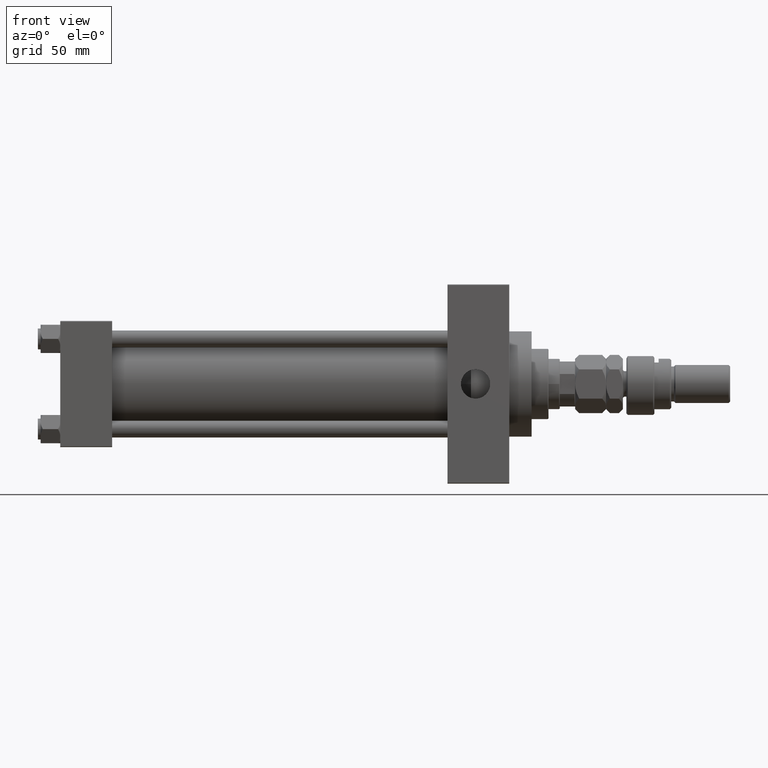
[diagram: clean part render]
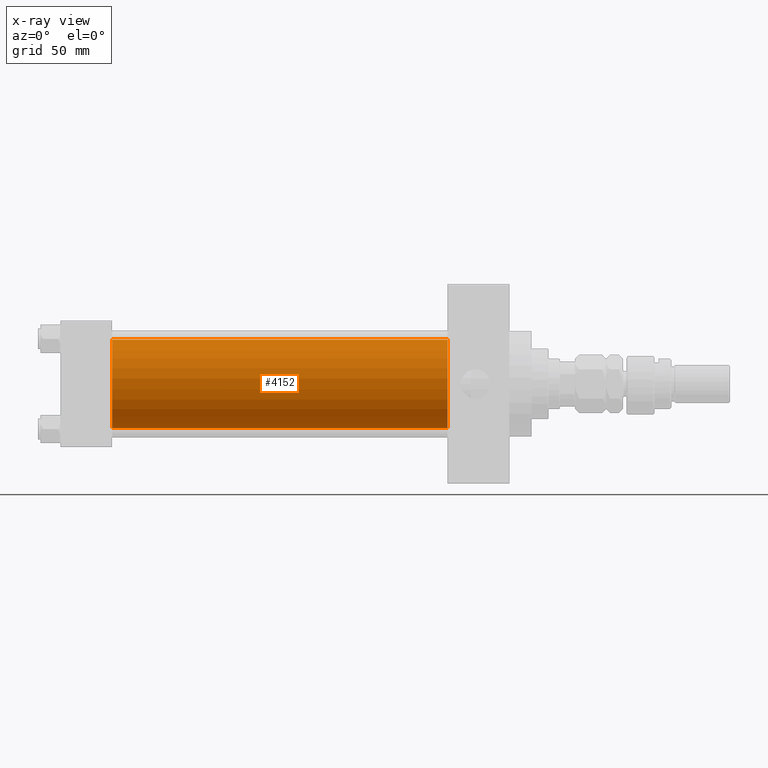
[diagram: x-ray — body ghosted, one internal face saturated and labeled with its STEP entity id]
A machine part, front view, then the same camera in x-ray: the body is ghosted and one INTERNAL B-rep face — a face not visible from any outside direction — is saturated and labeled: STEP entity #4152.
In plain terms, the highlighted cylindrical surface (partial cylindrical patch) has radius 31.5 mm, axis along (-1, -0, -0).
Its self-contained STEP definition (entity closure, byte-faithful):
#558 = VERTEX_POINT ( 'NONE', #12268 ) ;
#880 = AXIS2_PLACEMENT_3D ( 'NONE', #5885, #24958, #21643 ) ;
#4152 = ADVANCED_FACE ( 'NONE', ( #14686 ), #6828, .F. ) ;
#4393 = CARTESIAN_POINT ( 'NONE',  ( 37.00000000000000000, 1.255552203348951061E-15, -31.50000000000000000 ) ) ;
#4535 = DIRECTION ( 'NONE',  ( 1.000000000000000000, 0.000000000000000000, 0.000000000000000000 ) ) ;
#5885 = CARTESIAN_POINT ( 'NONE',  ( 37.00000000000000000, -2.602085213965210642E-15, 0.000000000000000000 ) ) ;
#6555 = VERTEX_POINT ( 'NONE', #4393 ) ;
#6828 = CYLINDRICAL_SURFACE ( 'NONE', #46364, 31.50000000000000000 ) ;
#7147 = EDGE_LOOP ( 'NONE', ( #17351, #16885, #46265, #11931 ) ) ;
#7504 = VECTOR ( 'NONE', #12637, 1000.000000000000000 ) ;
#8092 = DIRECTION ( 'NONE',  ( 0.000000000000000000, 0.000000000000000000, -1.000000000000000000 ) ) ;
#8490 = EDGE_CURVE ( 'NONE', #34095, #6555, #44745, .T. ) ;
#8906 = CIRCLE ( 'NONE', #18702, 31.50000000000000000 ) ;
#10229 = CARTESIAN_POINT ( 'NONE',  ( 275.9999999999999432, -2.602085213965210642E-15, 31.50000000000000000 ) ) ;
#11931 = ORIENTED_EDGE ( 'NONE', *, *, #16771, .F. ) ;
#11991 = CARTESIAN_POINT ( 'NONE',  ( 275.9999999999999432, -2.602085213965210642E-15, 31.50000000000000000 ) ) ;
#12268 = CARTESIAN_POINT ( 'NONE',  ( 275.9999999999999432, 1.255552203348951061E-15, -31.50000000000000000 ) ) ;
#12637 = DIRECTION ( 'NONE',  ( -1.000000000000000000, -0.000000000000000000, -0.000000000000000000 ) ) ;
#14037 = DIRECTION ( 'NONE',  ( -1.000000000000000000, -0.000000000000000000, -0.000000000000000000 ) ) ;
#14686 = FACE_OUTER_BOUND ( 'NONE', #7147, .T. ) ;
#16771 = EDGE_CURVE ( 'NONE', #23115, #34095, #34119, .T. ) ;
#16885 = ORIENTED_EDGE ( 'NONE', *, *, #31370, .T. ) ;
#17351 = ORIENTED_EDGE ( 'NONE', *, *, #28191, .T. ) ;
#18702 = AXIS2_PLACEMENT_3D ( 'NONE', #42931, #4535, #8092 ) ;
#21643 = DIRECTION ( 'NONE',  ( 0.000000000000000000, 0.000000000000000000, -1.000000000000000000 ) ) ;
#23115 = VERTEX_POINT ( 'NONE', #11991 ) ;
#24958 = DIRECTION ( 'NONE',  ( 1.000000000000000000, 0.000000000000000000, 0.000000000000000000 ) ) ;
#27415 = LINE ( 'NONE', #39863, #7504 ) ;
#28191 = EDGE_CURVE ( 'NONE', #23115, #558, #8906, .T. ) ;
#30194 = DIRECTION ( 'NONE',  ( -1.000000000000000000, -0.000000000000000000, -0.000000000000000000 ) ) ;
#31370 = EDGE_CURVE ( 'NONE', #558, #6555, #27415, .T. ) ;
#33269 = CARTESIAN_POINT ( 'NONE',  ( 275.9999999999999432, -2.602085213965210642E-15, 0.000000000000000000 ) ) ;
#34095 = VERTEX_POINT ( 'NONE', #49534 ) ;
#34119 = LINE ( 'NONE', #10229, #43425 ) ;
#39863 = CARTESIAN_POINT ( 'NONE',  ( 275.9999999999999432, 1.255552203348951061E-15, -31.50000000000000000 ) ) ;
#42931 = CARTESIAN_POINT ( 'NONE',  ( 275.9999999999999432, -2.602085213965210642E-15, 0.000000000000000000 ) ) ;
#43425 = VECTOR ( 'NONE', #14037, 1000.000000000000000 ) ;
#44745 = CIRCLE ( 'NONE', #880, 31.50000000000000000 ) ;
#45732 = DIRECTION ( 'NONE',  ( 0.000000000000000000, 0.000000000000000000, 1.000000000000000000 ) ) ;
#46265 = ORIENTED_EDGE ( 'NONE', *, *, #8490, .F. ) ;
#46364 = AXIS2_PLACEMENT_3D ( 'NONE', #33269, #30194, #45732 ) ;
#49534 = CARTESIAN_POINT ( 'NONE',  ( 37.00000000000000000, -2.602085213965210642E-15, 31.50000000000000000 ) ) ;